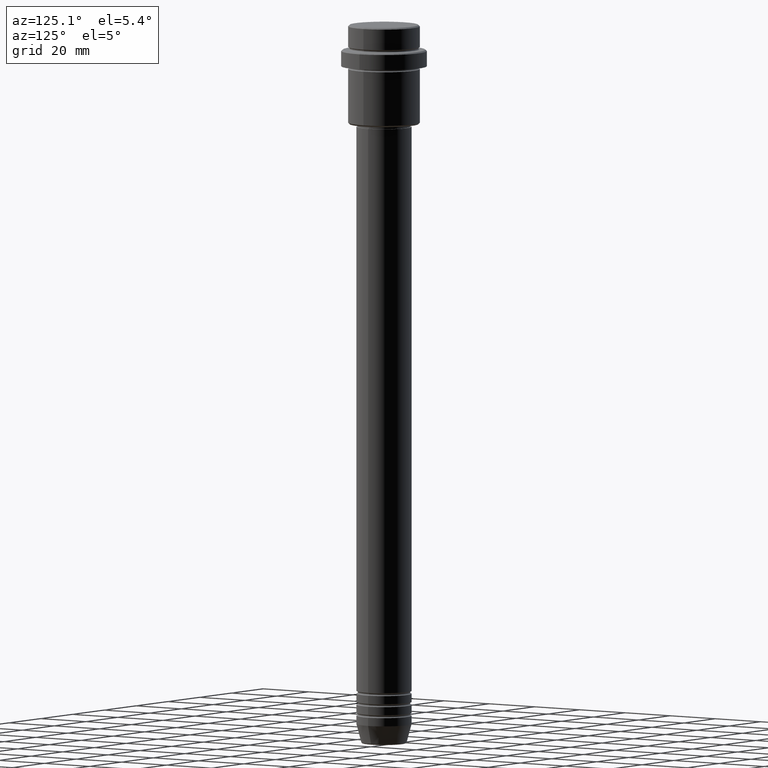
[diagram: clean part render]
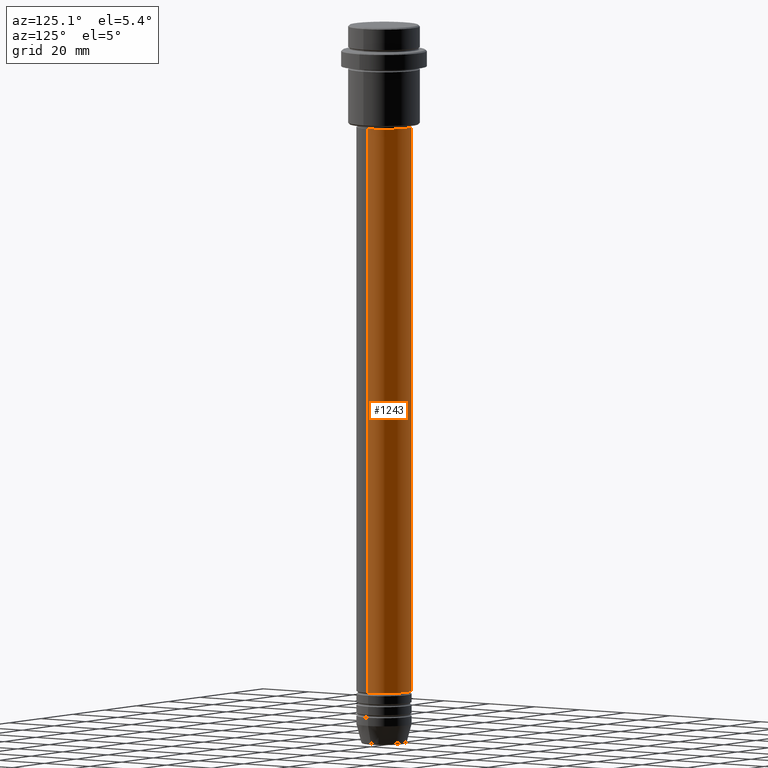
[diagram: same view with one face highlighted and labeled with its STEP entity id]
A machine part, auxiliary view. The second image highlights one B-rep face of the part: STEP entity #1243.
In plain terms, the highlighted cylindrical surface (edge-blend (fillet) strip) has radius 10 mm, axis along (-0, -0, 1).
Its self-contained STEP definition (entity closure, byte-faithful):
#3 = DIRECTION ( 'NONE',  ( 1.000000000000000000, 0.000000000000000000, 0.000000000000000000 ) ) ;
#9 = DIRECTION ( 'NONE',  ( -0.000000000000000000, -0.000000000000000000, 1.000000000000000000 ) ) ;
#81 = CARTESIAN_POINT ( 'NONE',  ( 10.00000000000000178, 0.000000000000000000, 0.000000000000000000 ) ) ;
#83 = CARTESIAN_POINT ( 'NONE',  ( 0.000000000000000000, 0.000000000000000000, -37.00000000000000711 ) ) ;
#112 = CARTESIAN_POINT ( 'NONE',  ( -10.00000000000000178, 1.224646799147353454E-15, 0.000000000000000000 ) ) ;
#164 = DIRECTION ( 'NONE',  ( -0.000000000000000000, -0.000000000000000000, 1.000000000000000000 ) ) ;
#223 = VERTEX_POINT ( 'NONE', #978 ) ;
#286 = CARTESIAN_POINT ( 'NONE',  ( -10.00000000000000000, 1.224646799147353256E-15, -241.9999999999998863 ) ) ;
#302 = CIRCLE ( 'NONE', #453, 10.00000000000000178 ) ;
#332 = CARTESIAN_POINT ( 'NONE',  ( 0.000000000000000000, 0.000000000000000000, -241.9999999999998863 ) ) ;
#409 = EDGE_CURVE ( 'NONE', #421, #504, #964, .T. ) ;
#421 = VERTEX_POINT ( 'NONE', #674 ) ;
#453 = AXIS2_PLACEMENT_3D ( 'NONE', #83, #950, #3 ) ;
#462 = EDGE_CURVE ( 'NONE', #945, #223, #302, .T. ) ;
#466 = CYLINDRICAL_SURFACE ( 'NONE', #770, 10.00000000000000178 ) ;
#488 = LINE ( 'NONE', #81, #1085 ) ;
#504 = VERTEX_POINT ( 'NONE', #286 ) ;
#540 = AXIS2_PLACEMENT_3D ( 'NONE', #332, #1065, #883 ) ;
#593 = DIRECTION ( 'NONE',  ( 1.000000000000000000, 0.000000000000000000, 0.000000000000000000 ) ) ;
#605 = VECTOR ( 'NONE', #9, 1000.000000000000000 ) ;
#650 = LINE ( 'NONE', #112, #605 ) ;
#674 = CARTESIAN_POINT ( 'NONE',  ( 10.00000000000000000, 0.000000000000000000, -241.9999999999998863 ) ) ;
#694 = FACE_OUTER_BOUND ( 'NONE', #1316, .T. ) ;
#770 = AXIS2_PLACEMENT_3D ( 'NONE', #1135, #164, #593 ) ;
#792 = EDGE_CURVE ( 'NONE', #421, #945, #488, .T. ) ;
#845 = EDGE_CURVE ( 'NONE', #504, #223, #650, .T. ) ;
#883 = DIRECTION ( 'NONE',  ( 1.000000000000000000, 0.000000000000000000, 0.000000000000000000 ) ) ;
#890 = CARTESIAN_POINT ( 'NONE',  ( 10.00000000000000178, 0.000000000000000000, -37.00000000000000711 ) ) ;
#919 = ORIENTED_EDGE ( 'NONE', *, *, #792, .F. ) ;
#923 = ORIENTED_EDGE ( 'NONE', *, *, #409, .T. ) ;
#945 = VERTEX_POINT ( 'NONE', #890 ) ;
#950 = DIRECTION ( 'NONE',  ( -0.000000000000000000, -0.000000000000000000, 1.000000000000000000 ) ) ;
#964 = CIRCLE ( 'NONE', #540, 10.00000000000000000 ) ;
#978 = CARTESIAN_POINT ( 'NONE',  ( -10.00000000000000178, 1.224646799147353454E-15, -37.00000000000000711 ) ) ;
#985 = ORIENTED_EDGE ( 'NONE', *, *, #845, .T. ) ;
#1065 = DIRECTION ( 'NONE',  ( -0.000000000000000000, -0.000000000000000000, 1.000000000000000000 ) ) ;
#1085 = VECTOR ( 'NONE', #1396, 1000.000000000000000 ) ;
#1135 = CARTESIAN_POINT ( 'NONE',  ( 0.000000000000000000, 0.000000000000000000, 0.000000000000000000 ) ) ;
#1243 = ADVANCED_FACE ( 'NONE', ( #694 ), #466, .T. ) ;
#1268 = ORIENTED_EDGE ( 'NONE', *, *, #462, .F. ) ;
#1316 = EDGE_LOOP ( 'NONE', ( #923, #985, #1268, #919 ) ) ;
#1396 = DIRECTION ( 'NONE',  ( -0.000000000000000000, -0.000000000000000000, 1.000000000000000000 ) ) ;